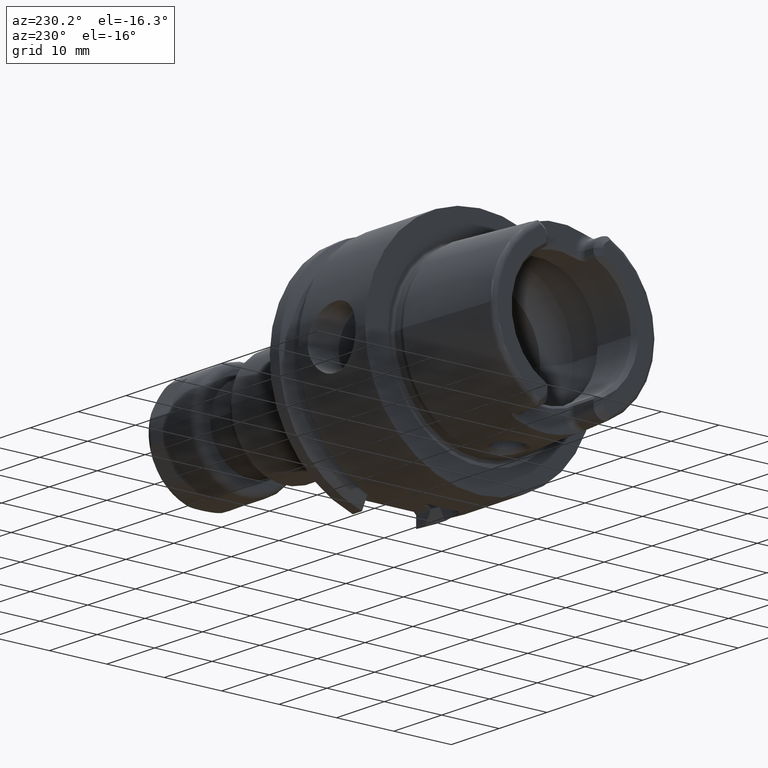
[diagram: clean part render]
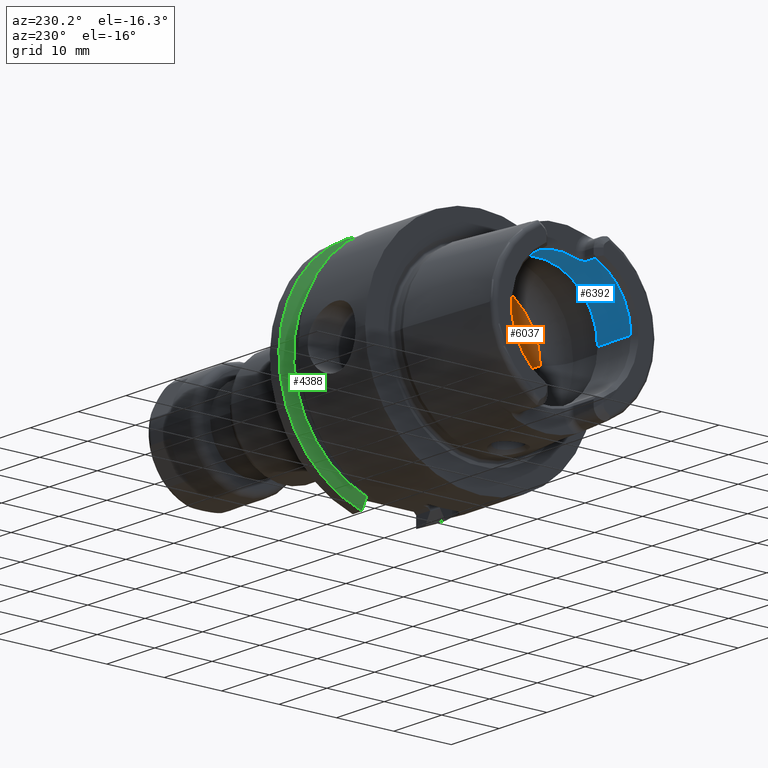
[diagram: same view with three faces highlighted in distinct colors, each labeled with its STEP entity id]
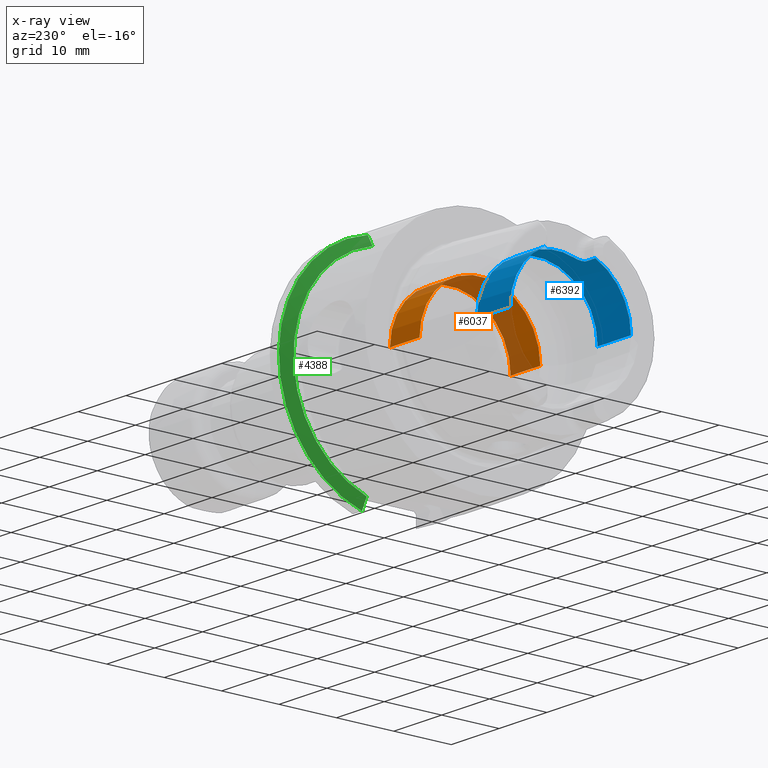
[diagram: x-ray of the same camera — body ghosted, the three highlighted faces saturated]
A machine part, auxiliary view with three faces highlighted in distinct colors.
The next image is the same camera in x-ray (body ghosted, the three faces saturated) — at least one of them is partly hidden behind the body in this view.
Their STEP definitions:

[orange] entity #6037 — the highlighted cylindrical surface (partial cylindrical patch) has radius 10.521 mm, axis along (1, 0, 0).
#2177=CARTESIAN_POINT('',(0.E0,0.E0,0.E0));
#2178=DIRECTION('',(1.E0,0.E0,0.E0));
#2179=DIRECTION('',(0.E0,1.E0,0.E0));
#2180=AXIS2_PLACEMENT_3D('',#2177,#2178,#2179);
#2310=DIRECTION('',(-1.E0,0.E0,0.E0));
#2311=VECTOR('',#2310,6.186662590986E0);
#2312=CARTESIAN_POINT('',(6.186662590986E0,1.0521E1,0.E0));
#2313=LINE('',#2312,#2311);
#2319=DIRECTION('',(-1.E0,0.E0,0.E0));
#2320=VECTOR('',#2319,6.186662590986E0);
#2321=CARTESIAN_POINT('',(6.186662590986E0,-1.0521E1,0.E0));
#2322=LINE('',#2321,#2320);
#2323=CARTESIAN_POINT('',(6.186662590986E0,0.E0,0.E0));
#2324=DIRECTION('',(1.E0,0.E0,0.E0));
#2325=DIRECTION('',(0.E0,1.E0,0.E0));
#2326=AXIS2_PLACEMENT_3D('',#2323,#2324,#2325);
#2757=CARTESIAN_POINT('',(6.186662590986E0,1.0521E1,0.E0));
#2759=VERTEX_POINT('',#2757);
#2761=CARTESIAN_POINT('',(6.186662590986E0,-1.0521E1,0.E0));
#2763=VERTEX_POINT('',#2761);
#3114=CARTESIAN_POINT('',(0.E0,1.0521E1,0.E0));
#3115=VERTEX_POINT('',#3114);
#3126=CARTESIAN_POINT('',(0.E0,-1.0521E1,0.E0));
#3127=VERTEX_POINT('',#3126);
#6025=CARTESIAN_POINT('',(-2.12925E1,0.E0,0.E0));
#6026=DIRECTION('',(1.E0,0.E0,0.E0));
#6027=DIRECTION('',(0.E0,-1.E0,0.E0));
#6028=AXIS2_PLACEMENT_3D('',#6025,#6026,#6027);
#6029=CYLINDRICAL_SURFACE('',#6028,1.0521E1);
#6030=ORIENTED_EDGE('',*,*,#6015,.T.);
#6031=ORIENTED_EDGE('',*,*,#5949,.T.);
#6032=ORIENTED_EDGE('',*,*,#6019,.F.);
#6034=ORIENTED_EDGE('',*,*,#6033,.F.);
#6035=EDGE_LOOP('',(#6030,#6031,#6032,#6034));
#6036=FACE_OUTER_BOUND('',#6035,.F.);
#6037=ADVANCED_FACE('',(#6036),#6029,.F.);
#2181=CIRCLE('',#2180,1.0521E1);
#2327=CIRCLE('',#2326,1.0521E1);
#5949=EDGE_CURVE('',#3115,#3127,#2181,.T.);
#6015=EDGE_CURVE('',#2759,#3115,#2313,.T.);
#6019=EDGE_CURVE('',#2763,#3127,#2322,.T.);
#6033=EDGE_CURVE('',#2759,#2763,#2327,.T.);

[blue] entity #6392 — the highlighted cylindrical surface (partial cylindrical patch) has radius 10.521 mm, axis along (1, 0, 0).
#157=CARTESIAN_POINT('',(-1.895E1,0.E0,0.E0));
#158=DIRECTION('',(1.E0,0.E0,0.E0));
#159=DIRECTION('',(0.E0,1.E0,0.E0));
#160=AXIS2_PLACEMENT_3D('',#157,#158,#159);
#189=CARTESIAN_POINT('',(-1.895E1,0.E0,0.E0));
#190=DIRECTION('',(1.E0,0.E0,0.E0));
#191=DIRECTION('',(0.E0,-4.118322130602E-1,9.112596931095E-1));
#192=AXIS2_PLACEMENT_3D('',#189,#190,#191);
#490=DIRECTION('',(-1.E0,0.E0,0.E0));
#491=VECTOR('',#490,6.964774086463E0);
#492=CARTESIAN_POINT('',(-1.198522591354E1,1.0521E1,0.E0));
#493=LINE('',#492,#491);
#499=DIRECTION('',(-1.E0,0.E0,0.E0));
#500=VECTOR('',#499,6.964774086463E0);
#501=CARTESIAN_POINT('',(-1.198522591354E1,-1.0521E1,0.E0));
#502=LINE('',#501,#500);
#2544=DIRECTION('',(1.E0,0.E0,0.E0));
#2545=VECTOR('',#2544,1.75E0);
#2546=CARTESIAN_POINT('',(-1.895E1,4.332886713606E0,9.587363231205E0));
#2547=LINE('',#2546,#2545);
#2548=CARTESIAN_POINT('',(-1.606905989232E1,3.125E0,1.004618415121E1));
#2549=CARTESIAN_POINT('',(-1.606592975632E1,3.211047903171E0,1.001941779959E1));
#2550=CARTESIAN_POINT('',(-1.607830690364E1,3.376674935651E0,9.965489777489E0));
#2551=CARTESIAN_POINT('',(-1.614487701062E1,3.608387354782E0,9.883797452958E0));
#2552=CARTESIAN_POINT('',(-1.625248013602E1,3.815484612350E0,9.805480189144E0));
#2553=CARTESIAN_POINT('',(-1.639066255617E1,3.989788124029E0,9.735653861391E0));
#2554=CARTESIAN_POINT('',(-1.656012006947E1,4.135710131119E0,9.674392936752E0));
#2555=CARTESIAN_POINT('',(-1.675410390616E1,4.245967146710E0,9.626339205827E0));
#2556=CARTESIAN_POINT('',(-1.697166896900E1,4.316666764180E0,9.594719443667E0));
#2557=CARTESIAN_POINT('',(-1.712238435692E1,4.332886713606E0,9.587363231205E0));
#2558=CARTESIAN_POINT('',(-1.72E1,4.332886713606E0,9.587363231205E0));
#2560=CARTESIAN_POINT('',(-1.606905989232E1,-3.125E0,1.004618415121E1));
#2561=CARTESIAN_POINT('',(-1.606905989232E1,-2.721042228970E0,
1.017184062092E1));
#2562=CARTESIAN_POINT('',(-1.606905989235E1,-1.897951985783E0,
1.037436441745E1));
#2563=CARTESIAN_POINT('',(-1.606905989234E1,-6.357304159774E-1,
1.052736939476E1));
#2564=CARTESIAN_POINT('',(-1.606905989234E1,6.357304159773E-1,
1.052736939476E1));
#2565=CARTESIAN_POINT('',(-1.606905989235E1,1.897951985784E0,1.037436441746E1));
#2566=CARTESIAN_POINT('',(-1.606905989232E1,2.721042228969E0,1.017184062091E1));
#2567=CARTESIAN_POINT('',(-1.606905989232E1,3.125E0,1.004618415121E1));
#2569=CARTESIAN_POINT('',(-1.72E1,-4.332886713606E0,9.587363231205E0));
#2570=CARTESIAN_POINT('',(-1.712285006857E1,-4.332886713606E0,
9.587363231205E0));
#2571=CARTESIAN_POINT('',(-1.697307041867E1,-4.316718593708E0,
9.594693336977E0));
#2572=CARTESIAN_POINT('',(-1.675926406065E1,-4.248069617224E0,
9.625405215616E0));
#2573=CARTESIAN_POINT('',(-1.656435139104E1,-4.138751657454E0,
9.673089130358E0));
#2574=CARTESIAN_POINT('',(-1.639441708920E1,-3.993617830692E0,
9.734075777498E0));
#2575=CARTESIAN_POINT('',(-1.625572565004E1,-3.820495104545E0,
9.803525976759E0));
#2576=CARTESIAN_POINT('',(-1.614643644861E1,-3.612675047199E0,
9.882244600219E0));
#2577=CARTESIAN_POINT('',(-1.607856837010E1,-3.378987943032E0,
9.964725252688E0));
#2578=CARTESIAN_POINT('',(-1.606589935315E1,-3.211883690699E0,
1.001915781670E1));
#2579=CARTESIAN_POINT('',(-1.606905989232E1,-3.125E0,1.004618415121E1));
#2581=DIRECTION('',(1.E0,0.E0,0.E0));
#2582=VECTOR('',#2581,1.75E0);
#2583=CARTESIAN_POINT('',(-1.895E1,-4.332886713606E0,9.587363231205E0));
#2584=LINE('',#2583,#2582);
#2585=CARTESIAN_POINT('',(-1.198522591354E1,0.E0,0.E0));
#2586=DIRECTION('',(1.E0,0.E0,0.E0));
#2587=DIRECTION('',(0.E0,1.E0,0.E0));
#2588=AXIS2_PLACEMENT_3D('',#2585,#2586,#2587);
#2827=CARTESIAN_POINT('',(-1.72E1,4.332886713606E0,9.587363231205E0));
#2828=VERTEX_POINT('',#2827);
#2829=CARTESIAN_POINT('',(-1.606905989232E1,3.125E0,1.004618415121E1));
#2830=VERTEX_POINT('',#2829);
#2831=CARTESIAN_POINT('',(-1.72E1,-4.332886713606E0,9.587363231205E0));
#2832=VERTEX_POINT('',#2831);
#2833=CARTESIAN_POINT('',(-1.606905989232E1,-3.125E0,1.004618415121E1));
#2834=VERTEX_POINT('',#2833);
#3122=CARTESIAN_POINT('',(-1.198522591354E1,1.0521E1,0.E0));
#3123=VERTEX_POINT('',#3122);
#3124=CARTESIAN_POINT('',(-1.895E1,1.0521E1,0.E0));
#3125=VERTEX_POINT('',#3124);
#3134=CARTESIAN_POINT('',(-1.198522591354E1,-1.0521E1,0.E0));
#3135=VERTEX_POINT('',#3134);
#3136=CARTESIAN_POINT('',(-1.895E1,-1.0521E1,0.E0));
#3137=VERTEX_POINT('',#3136);
#3138=CARTESIAN_POINT('',(-1.895E1,4.332886713606E0,9.587363231205E0));
#3139=VERTEX_POINT('',#3138);
#3140=CARTESIAN_POINT('',(-1.895E1,-4.332886713606E0,9.587363231205E0));
#3141=VERTEX_POINT('',#3140);
#6371=CARTESIAN_POINT('',(-2.12925E1,0.E0,0.E0));
#6372=DIRECTION('',(1.E0,0.E0,0.E0));
#6373=DIRECTION('',(0.E0,-1.E0,0.E0));
#6374=AXIS2_PLACEMENT_3D('',#6371,#6372,#6373);
#6375=CYLINDRICAL_SURFACE('',#6374,1.0521E1);
#6376=ORIENTED_EDGE('',*,*,#3450,.T.);
#6378=ORIENTED_EDGE('',*,*,#6377,.F.);
#6380=ORIENTED_EDGE('',*,*,#6379,.F.);
#6382=ORIENTED_EDGE('',*,*,#6381,.F.);
#6384=ORIENTED_EDGE('',*,*,#6383,.F.);
#6385=ORIENTED_EDGE('',*,*,#3415,.T.);
#6386=ORIENTED_EDGE('',*,*,#3676,.F.);
#6387=ORIENTED_EDGE('',*,*,#6351,.F.);
#6388=ORIENTED_EDGE('',*,*,#3672,.T.);
#6389=ORIENTED_EDGE('',*,*,#3395,.T.);
#6390=EDGE_LOOP('',(#6376,#6378,#6380,#6382,#6384,#6385,#6386,#6387,#6388,
#6389));
#6391=FACE_OUTER_BOUND('',#6390,.F.);
#6392=ADVANCED_FACE('',(#6391),#6375,.F.);
#161=CIRCLE('',#160,1.0521E1);
#193=CIRCLE('',#192,1.0521E1);
#2559=B_SPLINE_CURVE_WITH_KNOTS('',3,(#2548,#2549,#2550,#2551,#2552,#2553,#2554,
#2555,#2556,#2557,#2558),.UNSPECIFIED.,.F.,.F.,(4,1,1,1,1,1,1,1,4),(0.E0,
1.25E-1,2.5E-1,3.75E-1,5.E-1,6.25E-1,7.5E-1,8.75E-1,1.E0),.UNSPECIFIED.);
#2568=B_SPLINE_CURVE_WITH_KNOTS('',3,(#2560,#2561,#2562,#2563,#2564,#2565,#2566,
#2567),.UNSPECIFIED.,.F.,.F.,(4,1,1,1,1,4),(0.E0,2.E-1,4.E-1,6.E-1,8.E-1,1.E0),
.UNSPECIFIED.);
#2580=B_SPLINE_CURVE_WITH_KNOTS('',3,(#2569,#2570,#2571,#2572,#2573,#2574,#2575,
#2576,#2577,#2578,#2579),.UNSPECIFIED.,.F.,.F.,(4,1,1,1,1,1,1,1,4),(0.E0,
1.25E-1,2.5E-1,3.75E-1,5.E-1,6.25E-1,7.5E-1,8.75E-1,1.E0),.UNSPECIFIED.);
#2589=CIRCLE('',#2588,1.0521E1);
#3395=EDGE_CURVE('',#3125,#3139,#161,.T.);
#3415=EDGE_CURVE('',#3141,#3137,#193,.T.);
#3450=EDGE_CURVE('',#3139,#2828,#2547,.T.);
#3672=EDGE_CURVE('',#3123,#3125,#493,.T.);
#3676=EDGE_CURVE('',#3135,#3137,#502,.T.);
#6351=EDGE_CURVE('',#3123,#3135,#2589,.T.);
#6377=EDGE_CURVE('',#2830,#2828,#2559,.T.);
#6379=EDGE_CURVE('',#2834,#2830,#2568,.T.);
#6381=EDGE_CURVE('',#2832,#2834,#2580,.T.);
#6383=EDGE_CURVE('',#3141,#2832,#2584,.T.);

[green] entity #4388 — the highlighted conical surface has half-angle 60 deg.
#1021=CARTESIAN_POINT('',(1.803515969889E1,0.E0,0.E0));
#1022=DIRECTION('',(-1.E0,0.E0,0.E0));
#1023=DIRECTION('',(0.E0,2.25725E-1,9.741910615352E-1));
#1024=AXIS2_PLACEMENT_3D('',#1021,#1022,#1023);
#1132=CARTESIAN_POINT('',(1.70375E1,0.E0,0.E0));
#1133=DIRECTION('',(-1.E0,0.E0,0.E0));
#1134=DIRECTION('',(0.E0,2.470719860842E-1,9.689971278040E-1));
#1135=AXIS2_PLACEMENT_3D('',#1132,#1133,#1134);
#1399=CARTESIAN_POINT('',(1.803515969889E1,5.5175E0,-1.922387041545E1));
#1400=CARTESIAN_POINT('',(1.791992583925E1,5.5175E0,-1.901622138812E1));
#1401=CARTESIAN_POINT('',(1.769237632933E1,5.5175E0,-1.860566967499E1));
#1402=CARTESIAN_POINT('',(1.735989185391E1,5.5175E0,-1.800420325575E1));
#1403=CARTESIAN_POINT('',(1.714399459474E1,5.5175E0,-1.761253540924E1));
#1404=CARTESIAN_POINT('',(1.70375E1,5.5175E0,-1.741904925329E1));
#1435=CARTESIAN_POINT('',(1.70375E1,4.5145E0,1.770551814798E1));
#1436=CARTESIAN_POINT('',(1.714447115751E1,4.5145E0,1.789672560819E1));
#1437=CARTESIAN_POINT('',(1.736100339003E1,4.5145E0,1.828339173494E1));
#1438=CARTESIAN_POINT('',(1.769350911179E1,4.5145E0,1.887606128139E1));
#1439=CARTESIAN_POINT('',(1.792041108712E1,4.5145E0,1.927980537228E1));
#1440=CARTESIAN_POINT('',(1.803515969889E1,4.5145E0,1.948382123070E1));
#2930=CARTESIAN_POINT('',(1.70375E1,4.5145E0,1.770551814798E1));
#2932=VERTEX_POINT('',#2930);
#2933=VERTEX_POINT('',#1440);
#2940=CARTESIAN_POINT('',(1.70375E1,5.5175E0,-1.741904925329E1));
#2942=VERTEX_POINT('',#2940);
#2943=VERTEX_POINT('',#1399);
#4374=CARTESIAN_POINT('',(1.753632984945E1,0.E0,0.E0));
#4375=DIRECTION('',(1.E0,0.E0,0.E0));
#4376=DIRECTION('',(0.E0,-1.E0,0.E0));
#4377=AXIS2_PLACEMENT_3D('',#4374,#4375,#4376);
#4378=CONICAL_SURFACE('',#4377,1.913600135643E1,6.E1);
#4380=ORIENTED_EDGE('',*,*,#4379,.T.);
#4382=ORIENTED_EDGE('',*,*,#4381,.F.);
#4383=ORIENTED_EDGE('',*,*,#4335,.F.);
#4385=ORIENTED_EDGE('',*,*,#4384,.F.);
#4386=EDGE_LOOP('',(#4380,#4382,#4383,#4385));
#4387=FACE_OUTER_BOUND('',#4386,.F.);
#4388=ADVANCED_FACE('',(#4387),#4378,.T.);
#1025=CIRCLE('',#1024,2.E1);
#1136=CIRCLE('',#1135,1.827200271285E1);
#1405=B_SPLINE_CURVE_WITH_KNOTS('',3,(#1399,#1400,#1401,#1402,#1403,#1404),
.UNSPECIFIED.,.F.,.F.,(4,1,1,4),(0.E0,3.333333333333E-1,6.666666666667E-1,1.E0),
.UNSPECIFIED.);
#1441=B_SPLINE_CURVE_WITH_KNOTS('',3,(#1435,#1436,#1437,#1438,#1439,#1440),
.UNSPECIFIED.,.F.,.F.,(4,1,1,4),(0.E0,3.333333333333E-1,6.666666666667E-1,1.E0),
.UNSPECIFIED.);
#4335=EDGE_CURVE('',#2933,#2943,#1025,.T.);
#4379=EDGE_CURVE('',#2932,#2942,#1136,.T.);
#4381=EDGE_CURVE('',#2943,#2942,#1405,.T.);
#4384=EDGE_CURVE('',#2932,#2933,#1441,.T.);